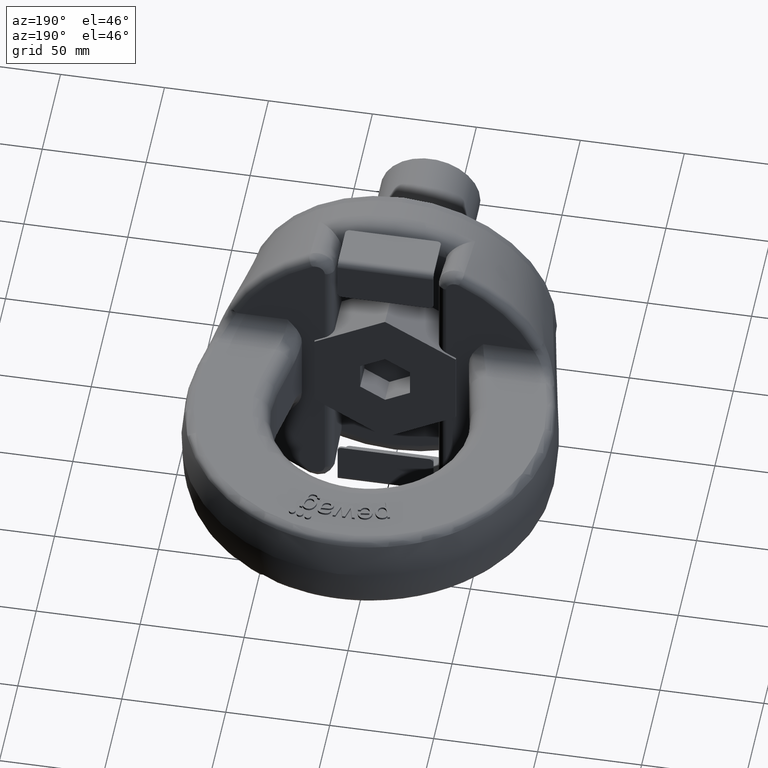
[diagram: clean part render]
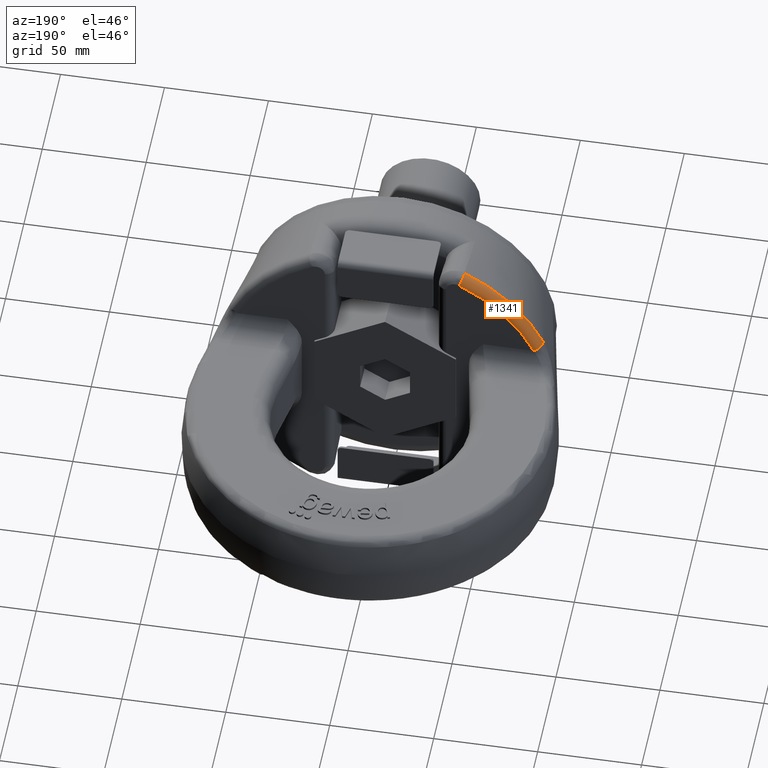
[diagram: same view with one face highlighted and labeled with its STEP entity id]
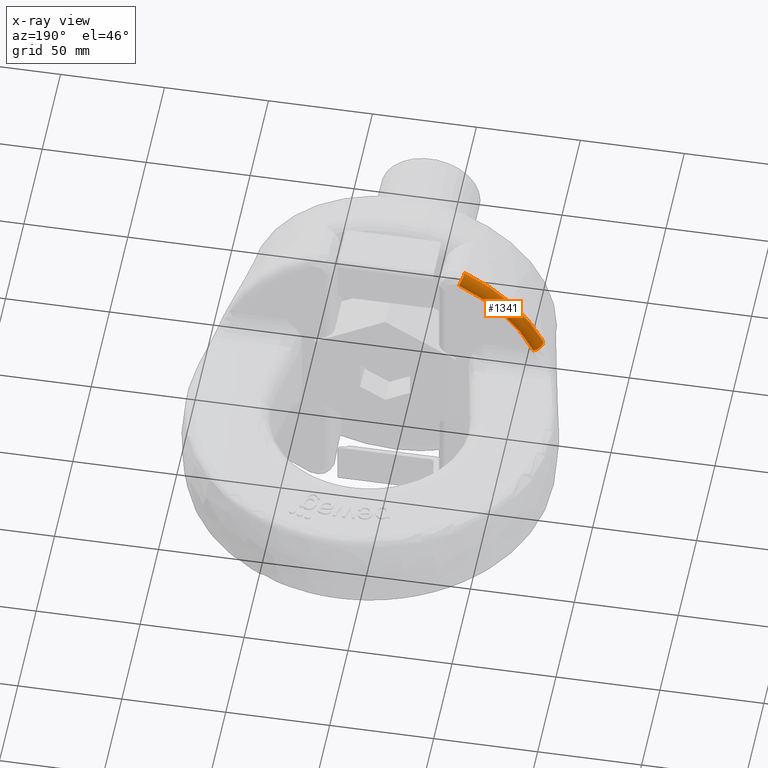
[diagram: x-ray of the same camera — body ghosted, the highlighted face saturated]
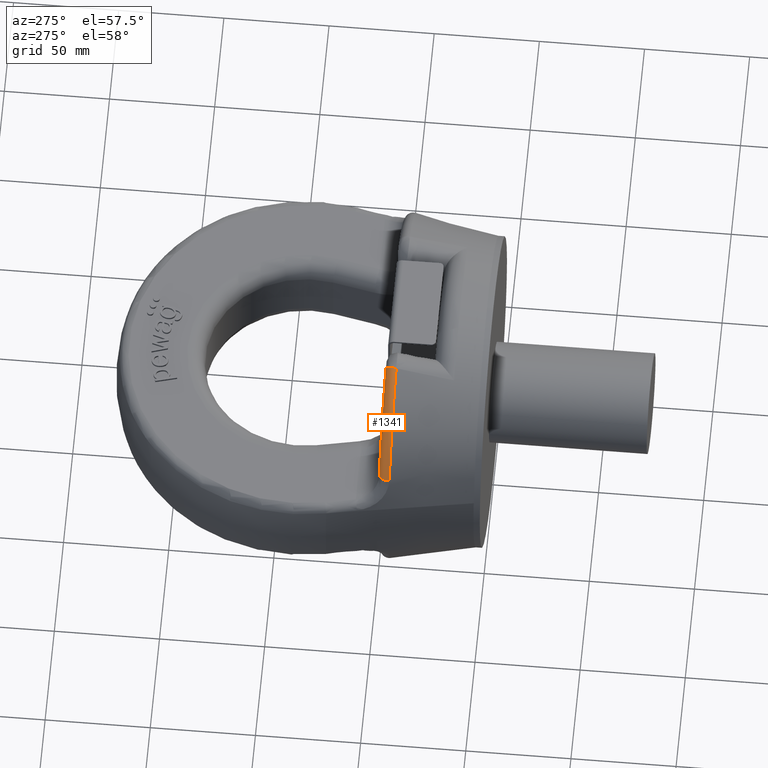
[diagram: same view with one face highlighted and labeled with its STEP entity id]
A machine part, auxiliary view. The second image highlights one B-rep face of the part: STEP entity #1341.
The next image is the same camera in x-ray: the body ghosted, the highlighted face saturated — about 0% of this face is hidden behind the body in this view.
A second angle (auxiliary view) of the same face is appended — the face is thin or edge-on in the first view.
In plain terms, the highlighted toroidal blend (fillet) surface has major radius 77.8609 mm and minor (blend) radius 4.2 mm.
Its self-contained STEP definition (entity closure, byte-faithful):
#1015=TOROIDAL_SURFACE('',#5183,77.8608531014751,4.2);
#1117=FACE_OUTER_BOUND('',#1857,.T.);
#1341=ADVANCED_FACE('',(#1117),#1015,.T.);
#1672=CIRCLE('',#5125,77.8608531014751);
#1683=CIRCLE('',#5141,81.9796080599081);
#1693=CIRCLE('',#5181,4.2);
#1694=CIRCLE('',#5182,4.2);
#1857=EDGE_LOOP('',(#2932,#2933,#2934,#2935));
#2932=ORIENTED_EDGE('',*,*,#4437,.T.);
#2933=ORIENTED_EDGE('',*,*,#4344,.F.);
#2934=ORIENTED_EDGE('',*,*,#4438,.F.);
#2935=ORIENTED_EDGE('',*,*,#4389,.F.);
#3943=VERTEX_POINT('',#6576);
#3956=VERTEX_POINT('',#6629);
#3999=VERTEX_POINT('',#6846);
#4000=VERTEX_POINT('',#6848);
#4344=EDGE_CURVE('',#3956,#3943,#1672,.T.);
#4389=EDGE_CURVE('',#3999,#4000,#1683,.T.);
#4437=EDGE_CURVE('',#3999,#3943,#1693,.T.);
#4438=EDGE_CURVE('',#4000,#3956,#1694,.T.);
#5125=AXIS2_PLACEMENT_3D('',#6630,#5447,#5448);
#5141=AXIS2_PLACEMENT_3D('',#6847,#5495,#5496);
#5181=AXIS2_PLACEMENT_3D('',#7006,#5597,#5598);
#5182=AXIS2_PLACEMENT_3D('',#7037,#5599,#5600);
#5183=AXIS2_PLACEMENT_3D('',#7038,#5601,#5602);
#5447=DIRECTION('',(-9.15811220910091E-16,1.,0.));
#5448=DIRECTION('',(-1.,-8.91191610097548E-16,0.));
#5495=DIRECTION('',(9.15811220910091E-16,-1.,0.));
#5496=DIRECTION('',(1.,9.3105876875139E-16,0.));
#5597=DIRECTION('',(-0.891546139951211,-1.44929126695607E-15,-0.452929884571659));
#5598=DIRECTION('',(-0.452929884571658,0.,0.89154613995121));
#5599=DIRECTION('',(-0.404567876477624,-9.32701835662613E-16,-0.914507973350908));
#5600=DIRECTION('',(-0.91450797335091,0.,0.404567876477624));
#5601=DIRECTION('',(-9.15811220910091E-16,1.,0.));
#5602=DIRECTION('',(-1.,-9.30136966143817E-16,0.));
#6576=CARTESIAN_POINT('',(-35.2655072079021,48.,69.4165430359285));
#6629=CARTESIAN_POINT('',(-71.2043709732028,48.,31.5));
#6630=CARTESIAN_POINT('',(-2.65267683613307E-13,48.0000000000001,0.));
#6846=CARTESIAN_POINT('',(-37.131014415804,42.9778944153069,73.0886031205242));
#6847=CARTESIAN_POINT('',(-9.68139242728822E-14,42.9778944153069,0.));
#6848=CARTESIAN_POINT('',(-74.9710052229684,42.9778944153068,33.1663159472649));
#7006=CARTESIAN_POINT('',(-35.265507207902,43.8,69.4165430359284));
#7037=CARTESIAN_POINT('',(-71.2043709732028,43.8,31.5));
#7038=CARTESIAN_POINT('',(-2.61421276485485E-13,43.8,0.));